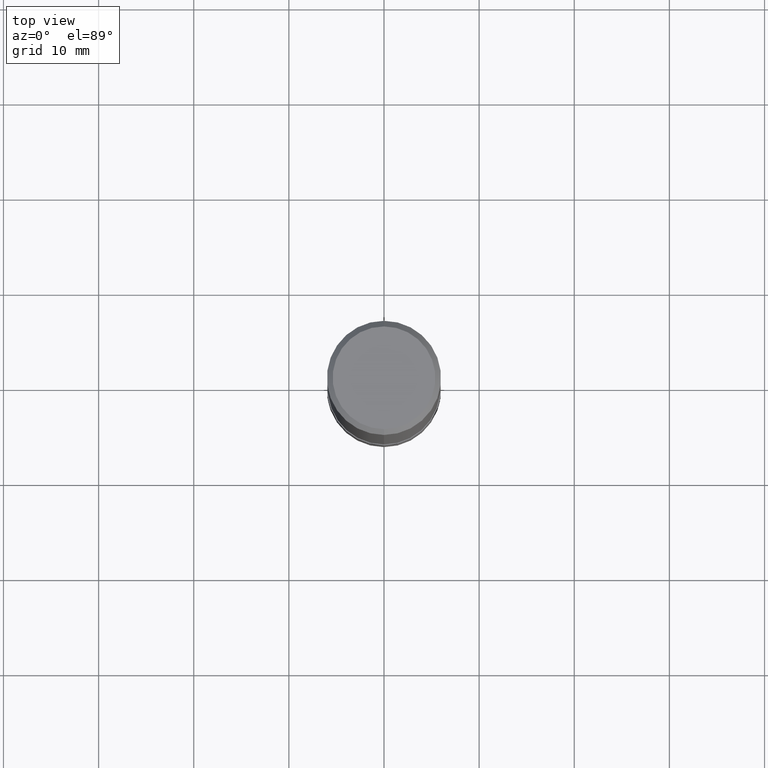
[diagram: clean part render]
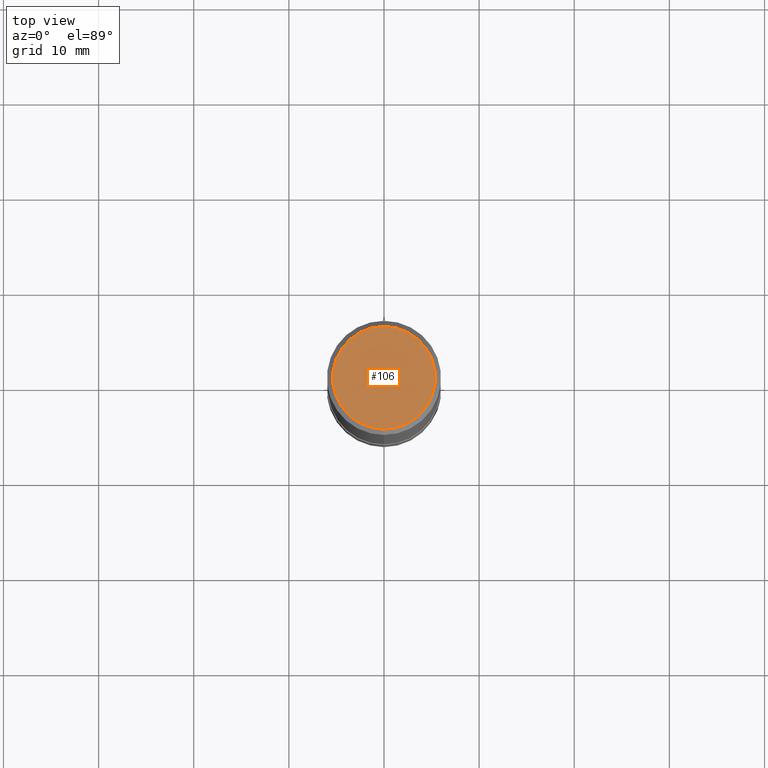
[diagram: same view with one face highlighted and labeled with its STEP entity id]
A machine part, top view. The second image highlights one B-rep face of the part: STEP entity #106.
In plain terms, the highlighted planar face has unit normal (-0, 0, 1).
Its self-contained STEP definition (entity closure, byte-faithful):
#98=VERTEX_POINT('',#236);
#106=ADVANCED_FACE('',(#244),#245,.T.);
#136=EDGE_CURVE('',#98,#160,#280,.T.);
#160=VERTEX_POINT('',#310);
#174=EDGE_CURVE('',#160,#98,#326,.T.);
#236=CARTESIAN_POINT('',(6.61287431064084E-016,-5.4,0.0));
#244=FACE_OUTER_BOUND('',#394,.T.);
#245=PLANE('',#395);
#280=CIRCLE('',#435,5.4);
#310=CARTESIAN_POINT('',(0.0,5.4,0.0));
#326=CIRCLE('',#488,5.4);
#394=EDGE_LOOP('',(#557,#558));
#395=AXIS2_PLACEMENT_3D('',#559,#560,#561);
#435=AXIS2_PLACEMENT_3D('',#613,#614,#615);
#488=AXIS2_PLACEMENT_3D('',#680,#681,#682);
#557=ORIENTED_EDGE('',*,*,#174,.F.);
#558=ORIENTED_EDGE('',*,*,#136,.F.);
#559=CARTESIAN_POINT('',(0.0,2.7,0.0));
#560=DIRECTION('',(-0.0,0.0,1.0));
#561=DIRECTION('',(0.0,-1.0,0.0));
#613=CARTESIAN_POINT('',(0.0,0.0,0.0));
#614=DIRECTION('',(0.0,0.0,-1.0));
#615=DIRECTION('',(0.0,1.0,0.0));
#680=CARTESIAN_POINT('',(0.0,0.0,0.0));
#681=DIRECTION('',(0.0,0.0,-1.0));
#682=DIRECTION('',(0.0,1.0,0.0));